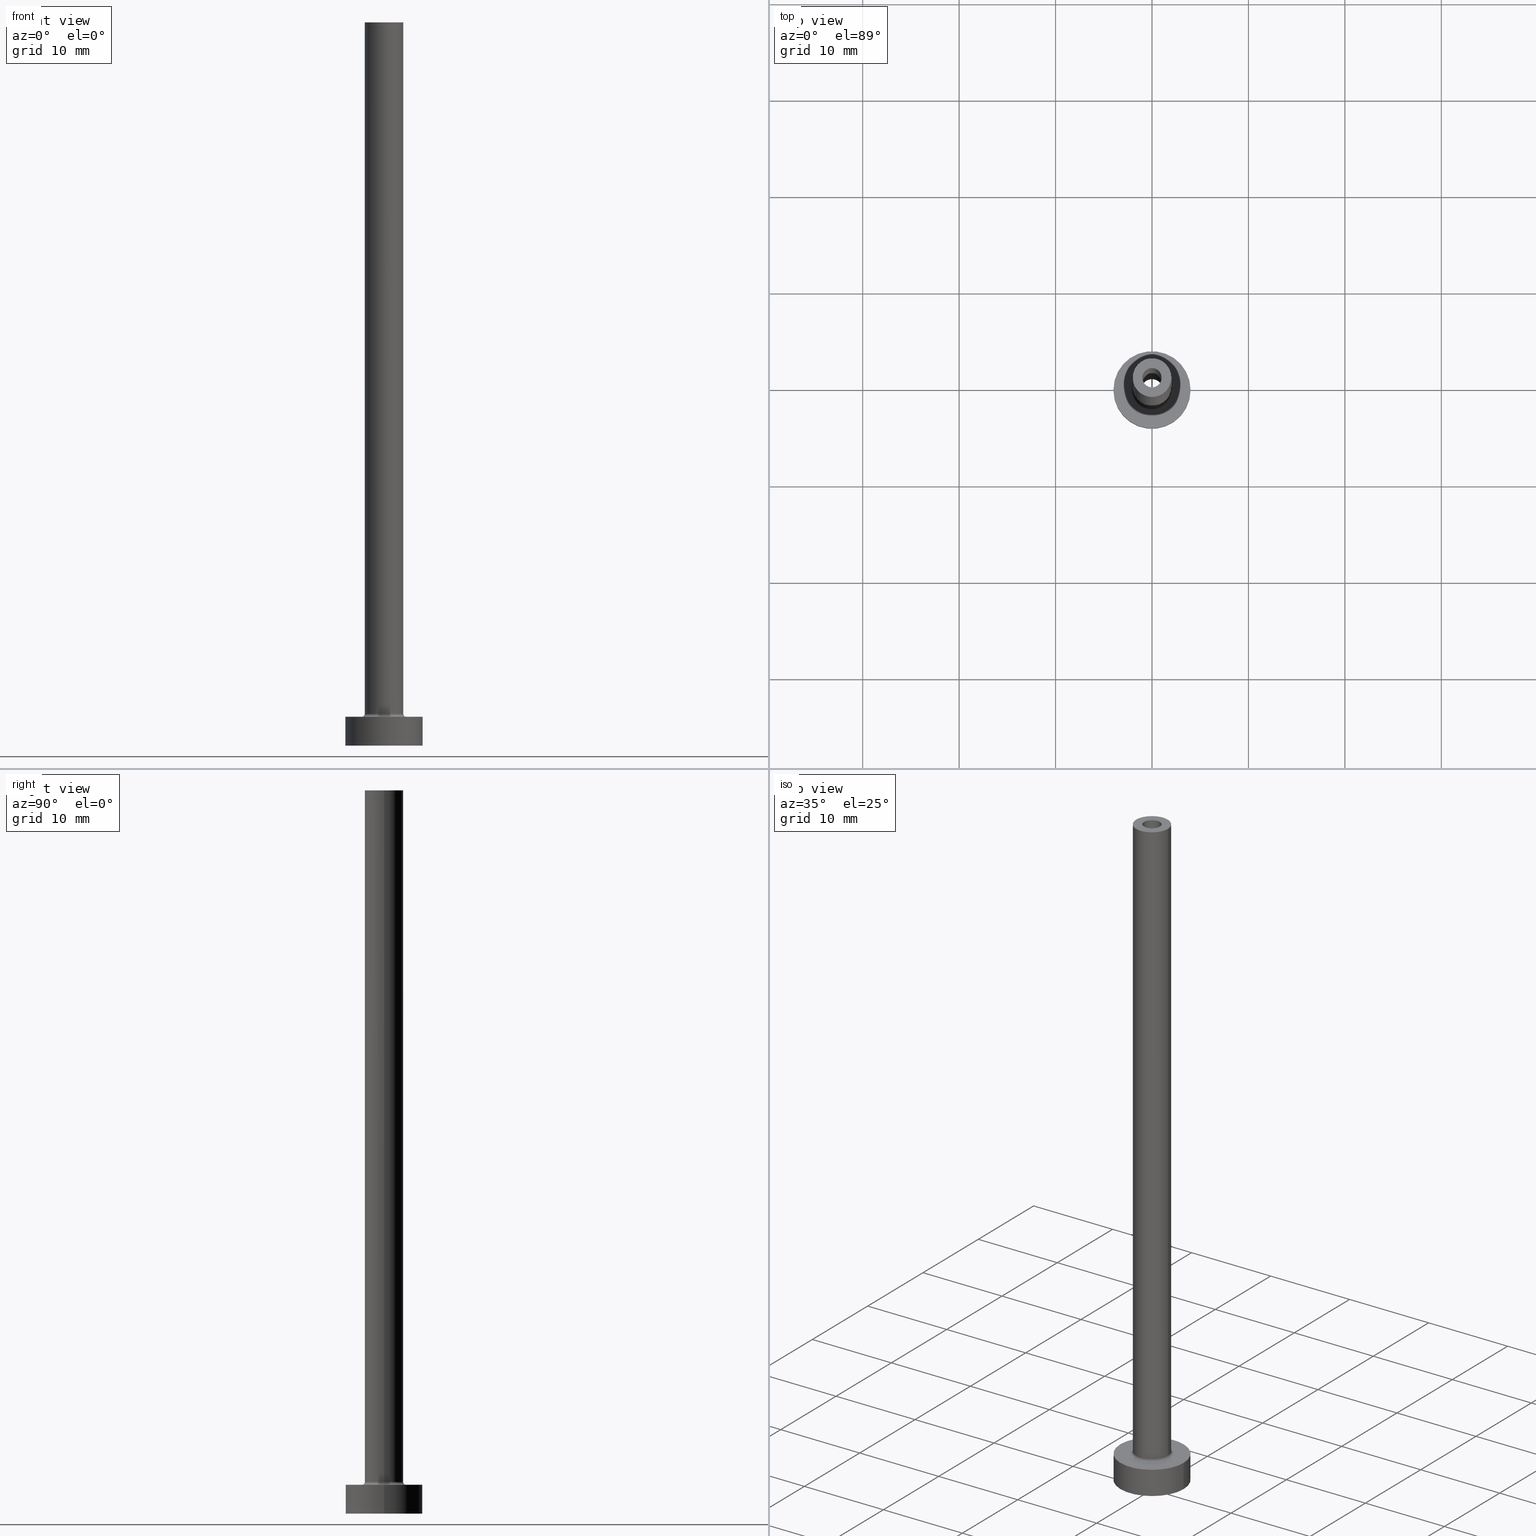
[diagram: canonical four-view strip — front | top / right | iso, engineering-drawing reading convention]
A machine part, canonical four-view strip (front | top / right | iso — engineering-drawing reading convention). The complete STEP part file that produces these views, byte-faithful:
ISO-10303-21;
HEADER;
FILE_DESCRIPTION (( 'STEP AP203' ),
    '1' );
FILE_NAME ('1f47.STEP',
    '2023-02-13T18:19:13',
    ( '' ),
    ( '' ),
    'SwSTEP 2.0',
    'SolidWorks 2019',
    '' );
FILE_SCHEMA (( 'CONFIG_CONTROL_DESIGN' ));
ENDSEC;

DATA;
#1 = CC_DESIGN_PERSON_AND_ORGANIZATION_ASSIGNMENT ( #449, #268, ( #460 ) ) ;
#2 = DIRECTION ( 'NONE',  ( -0.000000000000000000, -0.000000000000000000, -1.000000000000000000 ) ) ;
#3 = VERTEX_POINT ( 'NONE', #308 ) ;
#4 = PLANE ( 'NONE',  #385 ) ;
#5 = APPROVAL_PERSON_ORGANIZATION ( #375, #129, #310 ) ;
#6 = CARTESIAN_POINT ( 'NONE',  ( 4.000000000000000000, 4.898587196589412829E-16, 0.000000000000000000 ) ) ;
#7 = DIRECTION ( 'NONE',  ( 1.000000000000000000, 0.000000000000000000, 0.000000000000000000 ) ) ;
#8 = VERTEX_POINT ( 'NONE', #453 ) ;
#9 = DIRECTION ( 'NONE',  ( -0.000000000000000000, -0.000000000000000000, -1.000000000000000000 ) ) ;
#10 = ORIENTED_EDGE ( 'NONE', *, *, #213, .F. ) ;
#11 = FACE_BOUND ( 'NONE', #57, .T. ) ;
#12 = ORIENTED_EDGE ( 'NONE', *, *, #51, .F. ) ;
#13 = CIRCLE ( 'NONE', #444, 0.2999999999999999334 ) ;
#14 = CARTESIAN_POINT ( 'NONE',  ( 0.000000000000000000, 0.000000000000000000, 3.299999999999997158 ) ) ;
#15 = ORIENTED_EDGE ( 'NONE', *, *, #358, .T. ) ;
#16 = EDGE_LOOP ( 'NONE', ( #362, #439 ) ) ;
#17 = PERSON_AND_ORGANIZATION_ROLE ( 'classification_officer' ) ;
#18 = DIRECTION ( 'NONE',  ( -1.000000000000000000, 0.000000000000000000, 0.000000000000000000 ) ) ;
#19 = AXIS2_PLACEMENT_3D ( 'NONE', #77, #212, #183 ) ;
#20 = DATE_AND_TIME ( #25, #142 ) ;
#21 = DIRECTION ( 'NONE',  ( 1.000000000000000000, 0.000000000000000000, 0.000000000000000000 ) ) ;
#22 = CALENDAR_DATE ( 2023, 13, 2 ) ;
#23 = LINE ( 'NONE', #409, #427 ) ;
#24 = AXIS2_PLACEMENT_3D ( 'NONE', #269, #28, #99 ) ;
#25 = CALENDAR_DATE ( 2023, 13, 2 ) ;
#26 = DIRECTION ( 'NONE',  ( 0.000000000000000000, 0.000000000000000000, 1.000000000000000000 ) ) ;
#27 = AXIS2_PLACEMENT_3D ( 'NONE', #276, #408, #382 ) ;
#28 = DIRECTION ( 'NONE',  ( 0.000000000000000000, 0.000000000000000000, -1.000000000000000000 ) ) ;
#29 = EDGE_CURVE ( 'NONE', #159, #3, #23, .T. ) ;
#30 = DIRECTION ( 'NONE',  ( -1.000000000000000000, 0.000000000000000000, 0.000000000000000000 ) ) ;
#31 = ADVANCED_FACE ( 'NONE', ( #210 ), #412, .T. ) ;
#32 = FACE_BOUND ( 'NONE', #253, .T. ) ;
#33 = AXIS2_PLACEMENT_3D ( 'NONE', #376, #416, #18 ) ;
#34 = CIRCLE ( 'NONE', #204, 1.149999999999999911 ) ;
#35 = LOCAL_TIME ( 19, 19, 13.00000000000000000, #237 ) ;
#36 = CARTESIAN_POINT ( 'NONE',  ( 4.000000000000000000, 4.898587196589412829E-16, 3.000000000000000000 ) ) ;
#37 = ORIENTED_EDGE ( 'NONE', *, *, #143, .T. ) ;
#38 = DESIGN_CONTEXT ( 'detailed design', #174, 'design' ) ;
#39 = DIRECTION ( 'NONE',  ( 0.000000000000000000, 0.000000000000000000, 1.000000000000000000 ) ) ;
#40 = ORIENTED_EDGE ( 'NONE', *, *, #115, .T. ) ;
#41 = DIRECTION ( 'NONE',  ( -0.000000000000000000, -0.000000000000000000, -1.000000000000000000 ) ) ;
#42 = EDGE_LOOP ( 'NONE', ( #360, #431, #225, #84 ) ) ;
#43 = VECTOR ( 'NONE', #144, 1000.000000000000000 ) ;
#44 = DIRECTION ( 'NONE',  ( 0.000000000000000000, 0.000000000000000000, 1.000000000000000000 ) ) ;
#45 = APPROVAL ( #132, 'NEUR�EN�' ) ;
#46 = ORIENTED_EDGE ( 'NONE', *, *, #182, .F. ) ;
#47 = CARTESIAN_POINT ( 'NONE',  ( 0.000000000000000000, 0.000000000000000000, 75.00000000000000000 ) ) ;
#48 = ORIENTED_EDGE ( 'NONE', *, *, #289, .T. ) ;
#49 = DIRECTION ( 'NONE',  ( 0.000000000000000000, 0.000000000000000000, 1.000000000000000000 ) ) ;
#50 = ORIENTED_EDGE ( 'NONE', *, *, #229, .T. ) ;
#51 = EDGE_CURVE ( 'NONE', #326, #8, #265, .T. ) ;
#52 = FACE_OUTER_BOUND ( 'NONE', #185, .T. ) ;
#53 = CIRCLE ( 'NONE', #309, 1.000000000000000000 ) ;
#54 = ORIENTED_EDGE ( 'NONE', *, *, #358, .F. ) ;
#55 = LOCAL_TIME ( 19, 19, 13.00000000000000000, #451 ) ;
#56 = PERSON_AND_ORGANIZATION ( #244, #211 ) ;
#57 = EDGE_LOOP ( 'NONE', ( #397, #181 ) ) ;
#58 = APPLICATION_PROTOCOL_DEFINITION ( 'international standard', 'config_control_design', 1994, #174 ) ;
#59 = DIRECTION ( 'NONE',  ( 1.000000000000000000, 0.000000000000000000, 0.000000000000000000 ) ) ;
#60 = DATE_AND_TIME ( #22, #267 ) ;
#61 = CYLINDRICAL_SURFACE ( 'NONE', #300, 1.000000000000000000 ) ;
#62 = ADVANCED_FACE ( 'NONE', ( #207 ), #101, .F. ) ;
#63 = AXIS2_PLACEMENT_3D ( 'NONE', #425, #218, #314 ) ;
#64 = CC_DESIGN_APPROVAL ( #129, ( #168 ) ) ;
#65 = COORDINATED_UNIVERSAL_TIME_OFFSET ( 1, 0, .AHEAD. ) ;
#66 = CARTESIAN_POINT ( 'NONE',  ( -2.000000000000000000, 0.000000000000000000, 3.299999999999997158 ) ) ;
#67 = DATE_AND_TIME ( #342, #245 ) ;
#68 = DIRECTION ( 'NONE',  ( 0.000000000000000000, 0.000000000000000000, -1.000000000000000000 ) ) ;
#69 = CARTESIAN_POINT ( 'NONE',  ( -1.149999999999999911, 0.000000000000000000, 39.99999999999999289 ) ) ;
#70 = AXIS2_PLACEMENT_3D ( 'NONE', #110, #215, #461 ) ;
#71 = PLANE ( 'NONE',  #103 ) ;
#72 = CARTESIAN_POINT ( 'NONE',  ( 1.149999999999999911, 1.408343819019456028E-16, 43.25269119345810509 ) ) ;
#73 = EDGE_CURVE ( 'NONE', #159, #148, #330, .T. ) ;
#74 = CARTESIAN_POINT ( 'NONE',  ( -4.000000000000000000, 0.000000000000000000, 0.000000000000000000 ) ) ;
#75 = DIRECTION ( 'NONE',  ( 0.000000000000000000, 0.000000000000000000, 1.000000000000000000 ) ) ;
#76 = ORIENTED_EDGE ( 'NONE', *, *, #278, .T. ) ;
#77 = CARTESIAN_POINT ( 'NONE',  ( 0.000000000000000000, 0.000000000000000000, 3.299999999999997158 ) ) ;
#78 = ORIENTED_EDGE ( 'NONE', *, *, #79, .F. ) ;
#79 = EDGE_CURVE ( 'NONE', #231, #424, #441, .T. ) ;
#80 = DIRECTION ( 'NONE',  ( 0.000000000000000000, 0.000000000000000000, 1.000000000000000000 ) ) ;
#81 = VERTEX_POINT ( 'NONE', #374 ) ;
#82 = CIRCLE ( 'NONE', #186, 1.149999999999999911 ) ;
#83 = DIRECTION ( 'NONE',  ( 1.000000000000000000, 0.000000000000000000, 0.000000000000000000 ) ) ;
#84 = ORIENTED_EDGE ( 'NONE', *, *, #79, .T. ) ;
#85 = DIRECTION ( 'NONE',  ( 0.000000000000000000, 0.000000000000000000, 1.000000000000000000 ) ) ;
#86 = ORIENTED_EDGE ( 'NONE', *, *, #329, .F. ) ;
#87 = CC_DESIGN_PERSON_AND_ORGANIZATION_ASSIGNMENT ( #56, #206, ( #168 ) ) ;
#88 = CARTESIAN_POINT ( 'NONE',  ( 0.000000000000000000, 0.000000000000000000, 3.299999999999997158 ) ) ;
#89 = VERTEX_POINT ( 'NONE', #240 ) ;
#90 = AXIS2_PLACEMENT_3D ( 'NONE', #390, #351, #145 ) ;
#91 = ORIENTED_EDGE ( 'NONE', *, *, #255, .T. ) ;
#92 = PERSON_AND_ORGANIZATION ( #244, #211 ) ;
#93 = DIRECTION ( 'NONE',  ( 0.000000000000000000, 0.000000000000000000, -1.000000000000000000 ) ) ;
#94 = PERSON_AND_ORGANIZATION_ROLE ( 'design_owner' ) ;
#95 = ADVANCED_FACE ( 'NONE', ( #414 ), #61, .F. ) ;
#96 = DIRECTION ( 'NONE',  ( 1.000000000000000000, 0.000000000000000000, 0.000000000000000000 ) ) ;
#97 = DIRECTION ( 'NONE',  ( -0.000000000000000000, -0.000000000000000000, -1.000000000000000000 ) ) ;
#98 = CIRCLE ( 'NONE', #354, 0.2999999999999999334 ) ;
#99 = DIRECTION ( 'NONE',  ( -1.000000000000000000, 0.000000000000000000, 0.000000000000000000 ) ) ;
#100 = EDGE_CURVE ( 'NONE', #89, #369, #391, .T. ) ;
#101 = CYLINDRICAL_SURFACE ( 'NONE', #24, 1.000000000000000000 ) ;
#102 = CARTESIAN_POINT ( 'NONE',  ( 0.000000000000000000, 0.000000000000000000, 39.99999999999999289 ) ) ;
#103 = AXIS2_PLACEMENT_3D ( 'NONE', #313, #75, #279 ) ;
#104 = CARTESIAN_POINT ( 'NONE',  ( 0.000000000000000000, 0.000000000000000000, 75.00000000000000000 ) ) ;
#105 = CARTESIAN_POINT ( 'NONE',  ( 4.000000000000000000, 4.898587196589412829E-16, 3.000000000000000000 ) ) ;
#106 = CARTESIAN_POINT ( 'NONE',  ( 0.000000000000000000, 0.000000000000000000, 3.000000000000000000 ) ) ;
#107 = CIRCLE ( 'NONE', #363, 2.000000000000000000 ) ;
#108 = AXIS2_PLACEMENT_3D ( 'NONE', #102, #246, #423 ) ;
#109 = CC_DESIGN_APPROVAL ( #217, ( #378 ) ) ;
#110 = CARTESIAN_POINT ( 'NONE',  ( 0.000000000000000000, 0.000000000000000000, 3.000000000000000000 ) ) ;
#111 = ORIENTED_EDGE ( 'NONE', *, *, #440, .F. ) ;
#112 = ADVANCED_FACE ( 'NONE', ( #339 ), #306, .F. ) ;
#113 = DIRECTION ( 'NONE',  ( 0.000000000000000000, -1.000000000000000000, 0.000000000000000000 ) ) ;
#114 = ORIENTED_EDGE ( 'NONE', *, *, #29, .F. ) ;
#115 = EDGE_CURVE ( 'NONE', #254, #124, #241, .T. ) ;
#116 = ORIENTED_EDGE ( 'NONE', *, *, #456, .T. ) ;
#117 = AXIS2_PLACEMENT_3D ( 'NONE', #450, #133, #205 ) ;
#118 = CIRCLE ( 'NONE', #19, 2.000000000000000000 ) ;
#119 = DIRECTION ( 'NONE',  ( 0.000000000000000000, 0.000000000000000000, 1.000000000000000000 ) ) ;
#120 = EDGE_LOOP ( 'NONE', ( #299, #372, #154, #116 ) ) ;
#121 = CARTESIAN_POINT ( 'NONE',  ( 2.299999999999999822, 0.000000000000000000, 3.299999999999997158 ) ) ;
#122 = ORIENTED_EDGE ( 'NONE', *, *, #255, .F. ) ;
#123 = PRODUCT_DEFINITION_SHAPE ( 'NONE', 'NONE',  #168 ) ;
#124 = VERTEX_POINT ( 'NONE', #66 ) ;
#125 = AXIS2_PLACEMENT_3D ( 'NONE', #303, #26, #235 ) ;
#126 = MECHANICAL_CONTEXT ( 'NONE', #151, 'mechanical' ) ;
#127 = VECTOR ( 'NONE', #173, 1000.000000000000000 ) ;
#128 = DIRECTION ( 'NONE',  ( -1.000000000000000000, 0.000000000000000000, 0.000000000000000000 ) ) ;
#129 = APPROVAL ( #371, 'NEUR�EN�' ) ;
#130 = PERSON_AND_ORGANIZATION ( #244, #211 ) ;
#131 = DIRECTION ( 'NONE',  ( 0.000000000000000000, 0.000000000000000000, -1.000000000000000000 ) ) ;
#132 = APPROVAL_STATUS ( 'not_yet_approved' ) ;
#133 = DIRECTION ( 'NONE',  ( 0.000000000000000000, 0.000000000000000000, 1.000000000000000000 ) ) ;
#134 = CALENDAR_DATE ( 2023, 13, 2 ) ;
#135 = CARTESIAN_POINT ( 'NONE',  ( 1.000000000000000000, 1.224646799147353207E-16, 75.00000000000000000 ) ) ;
#136 = CC_DESIGN_SECURITY_CLASSIFICATION ( #378, ( #460 ) ) ;
#137 = APPROVAL_DATE_TIME ( #67, #45 ) ;
#138 = DIRECTION ( 'NONE',  ( -1.000000000000000000, 0.000000000000000000, 0.000000000000000000 ) ) ;
#139 = FACE_OUTER_BOUND ( 'NONE', #400, .T. ) ;
#140 = CARTESIAN_POINT ( 'NONE',  ( 1.149999999999999911, 1.408343819019456028E-16, 0.000000000000000000 ) ) ;
#141 = AXIS2_PLACEMENT_3D ( 'NONE', #196, #80, #290 ) ;
#142 = LOCAL_TIME ( 19, 19, 13.00000000000000000, #337 ) ;
#143 = EDGE_CURVE ( 'NONE', #316, #254, #107, .T. ) ;
#144 = DIRECTION ( 'NONE',  ( -0.000000000000000000, -0.000000000000000000, -1.000000000000000000 ) ) ;
#145 = DIRECTION ( 'NONE',  ( 1.000000000000000000, 0.000000000000000000, 0.000000000000000000 ) ) ;
#146 = ORIENTED_EDGE ( 'NONE', *, *, #456, .F. ) ;
#147 = DIRECTION ( 'NONE',  ( 0.000000000000000000, 0.000000000000000000, 1.000000000000000000 ) ) ;
#148 = VERTEX_POINT ( 'NONE', #135 ) ;
#149 = AXIS2_PLACEMENT_3D ( 'NONE', #47, #189, #83 ) ;
#150 = CARTESIAN_POINT ( 'NONE',  ( 0.000000000000000000, 0.000000000000000000, 39.99999999999999289 ) ) ;
#151 = APPLICATION_CONTEXT ( 'configuration controlled 3d designs of mechanical parts and assemblies' ) ;
#152 = EDGE_LOOP ( 'NONE', ( #15, #37 ) ) ;
#153 = PLANE ( 'NONE',  #341 ) ;
#154 = ORIENTED_EDGE ( 'NONE', *, *, #194, .T. ) ;
#155 = DIRECTION ( 'NONE',  ( 1.224646799147353207E-16, 1.000000000000000000, -0.000000000000000000 ) ) ;
#156 = VERTEX_POINT ( 'NONE', #69 ) ;
#157 = VECTOR ( 'NONE', #396, 1000.000000000000000 ) ;
#158 = FACE_OUTER_BOUND ( 'NONE', #152, .T. ) ;
#159 = VERTEX_POINT ( 'NONE', #275 ) ;
#160 = CARTESIAN_POINT ( 'NONE',  ( 0.000000000000000000, 0.000000000000000000, 75.00000000000000000 ) ) ;
#161 = ORIENTED_EDGE ( 'NONE', *, *, #29, .T. ) ;
#162 = ORIENTED_EDGE ( 'NONE', *, *, #289, .F. ) ;
#163 = ADVANCED_FACE ( 'NONE', ( #347 ), #171, .T. ) ;
#164 = CARTESIAN_POINT ( 'NONE',  ( 0.000000000000000000, 0.000000000000000000, 43.25269119345810509 ) ) ;
#165 = APPROVAL_PERSON_ORGANIZATION ( #92, #45, #234 ) ;
#166 = APPROVAL_ROLE ( '' ) ;
#167 = CARTESIAN_POINT ( 'NONE',  ( 0.000000000000000000, 0.000000000000000000, 75.00000000000000000 ) ) ;
#168 = PRODUCT_DEFINITION ( 'NEZN�M�', '', #460, #38 ) ;
#169 = APPROVAL_STATUS ( 'not_yet_approved' ) ;
#170 = DIRECTION ( 'NONE',  ( 0.000000000000000000, 0.000000000000000000, 1.000000000000000000 ) ) ;
#171 = CYLINDRICAL_SURFACE ( 'NONE', #377, 2.000000000000000000 ) ;
#172 = TOROIDAL_SURFACE ( 'NONE', #258, 2.299999999999999822, 0.2999999999999999889 ) ;
#173 = DIRECTION ( 'NONE',  ( 0.000000000000000000, 0.000000000000000000, -1.000000000000000000 ) ) ;
#174 = APPLICATION_CONTEXT ( 'configuration controlled 3d designs of mechanical parts and assemblies' ) ;
#175 = LINE ( 'NONE', #36, #43 ) ;
#176 = ADVANCED_FACE ( 'NONE', ( #349 ), #202, .F. ) ;
#177 = CARTESIAN_POINT ( 'NONE',  ( 2.000000000000000000, 2.449293598294706414E-16, 3.299999999999997158 ) ) ;
#178 = VECTOR ( 'NONE', #2, 1000.000000000000000 ) ;
#179 = APPROVAL_PERSON_ORGANIZATION ( #307, #217, #166 ) ;
#180 = FACE_OUTER_BOUND ( 'NONE', #328, .T. ) ;
#181 = ORIENTED_EDGE ( 'NONE', *, *, #322, .T. ) ;
#182 = EDGE_CURVE ( 'NONE', #148, #283, #233, .T. ) ;
#183 = DIRECTION ( 'NONE',  ( 1.000000000000000000, 0.000000000000000000, 0.000000000000000000 ) ) ;
#184 = DIRECTION ( 'NONE',  ( 1.000000000000000000, 0.000000000000000000, 0.000000000000000000 ) ) ;
#185 = EDGE_LOOP ( 'NONE', ( #394, #86 ) ) ;
#186 = AXIS2_PLACEMENT_3D ( 'NONE', #366, #49, #184 ) ;
#187 = APPLICATION_PROTOCOL_DEFINITION ( 'international standard', 'config_control_design', 1994, #151 ) ;
#188 = ORIENTED_EDGE ( 'NONE', *, *, #73, .T. ) ;
#189 = DIRECTION ( 'NONE',  ( 0.000000000000000000, 0.000000000000000000, 1.000000000000000000 ) ) ;
#190 = ORIENTED_EDGE ( 'NONE', *, *, #322, .F. ) ;
#191 = CARTESIAN_POINT ( 'NONE',  ( 0.000000000000000000, 0.000000000000000000, 0.000000000000000000 ) ) ;
#192 = ORIENTED_EDGE ( 'NONE', *, *, #213, .T. ) ;
#193 = PRODUCT ( '1f47', '1f47', '', ( #126 ) ) ;
#194 = EDGE_CURVE ( 'NONE', #156, #430, #271, .T. ) ;
#195 =( GEOMETRIC_REPRESENTATION_CONTEXT ( 3 ) GLOBAL_UNCERTAINTY_ASSIGNED_CONTEXT ( ( #436 ) ) GLOBAL_UNIT_ASSIGNED_CONTEXT ( ( #298, #264, #230 ) ) REPRESENTATION_CONTEXT ( 'NONE', 'WORKASPACE' ) );
#196 = CARTESIAN_POINT ( 'NONE',  ( 0.000000000000000000, 0.000000000000000000, 3.000000000000000000 ) ) ;
#197 = ORIENTED_EDGE ( 'NONE', *, *, #399, .F. ) ;
#198 = SHAPE_DEFINITION_REPRESENTATION ( #123, #389 ) ;
#199 = ADVANCED_FACE ( 'NONE', ( #180 ), #401, .F. ) ;
#200 = VERTEX_POINT ( 'NONE', #177 ) ;
#201 = DATE_AND_TIME ( #232, #35 ) ;
#202 = CYLINDRICAL_SURFACE ( 'NONE', #243, 1.149999999999999911 ) ;
#203 = DATE_TIME_ROLE ( 'creation_date' ) ;
#204 = AXIS2_PLACEMENT_3D ( 'NONE', #191, #9, #334 ) ;
#205 = DIRECTION ( 'NONE',  ( 1.000000000000000000, 0.000000000000000000, 0.000000000000000000 ) ) ;
#206 = PERSON_AND_ORGANIZATION_ROLE ( 'creator' ) ;
#207 = FACE_OUTER_BOUND ( 'NONE', #323, .T. ) ;
#208 = SECURITY_CLASSIFICATION_LEVEL ( 'unclassified' ) ;
#209 = CARTESIAN_POINT ( 'NONE',  ( 0.000000000000000000, 0.000000000000000000, 75.00000000000000000 ) ) ;
#210 = FACE_OUTER_BOUND ( 'NONE', #257, .T. ) ;
#211 = ORGANIZATION ( 'NEUR�EN�', 'NEUR�EN�', '' ) ;
#212 = DIRECTION ( 'NONE',  ( 0.000000000000000000, 0.000000000000000000, 1.000000000000000000 ) ) ;
#213 = EDGE_CURVE ( 'NONE', #369, #89, #251, .T. ) ;
#214 = DIRECTION ( 'NONE',  ( -0.000000000000000000, -0.000000000000000000, -1.000000000000000000 ) ) ;
#215 = DIRECTION ( 'NONE',  ( -0.000000000000000000, -0.000000000000000000, -1.000000000000000000 ) ) ;
#216 = CIRCLE ( 'NONE', #459, 1.000000000000000000 ) ;
#217 = APPROVAL ( #169, 'NEUR�EN�' ) ;
#218 = DIRECTION ( 'NONE',  ( -0.000000000000000000, -0.000000000000000000, -1.000000000000000000 ) ) ;
#219 = ORIENTED_EDGE ( 'NONE', *, *, #381, .T. ) ;
#220 = DIRECTION ( 'NONE',  ( 0.000000000000000000, 0.000000000000000000, 1.000000000000000000 ) ) ;
#221 = AXIS2_PLACEMENT_3D ( 'NONE', #343, #97, #21 ) ;
#222 = EDGE_LOOP ( 'NONE', ( #336, #48, #405, #367 ) ) ;
#223 = DIRECTION ( 'NONE',  ( 1.000000000000000000, 0.000000000000000000, -0.000000000000000000 ) ) ;
#224 = CC_DESIGN_PERSON_AND_ORGANIZATION_ASSIGNMENT ( #130, #94, ( #193 ) ) ;
#225 = ORIENTED_EDGE ( 'NONE', *, *, #392, .T. ) ;
#226 = PLANE ( 'NONE',  #324 ) ;
#227 = ORIENTED_EDGE ( 'NONE', *, *, #392, .F. ) ;
#228 = EDGE_LOOP ( 'NONE', ( #12, #76, #91, #227 ) ) ;
#229 = EDGE_CURVE ( 'NONE', #81, #332, #285, .T. ) ;
#230 =( NAMED_UNIT ( * ) SI_UNIT ( $, .STERADIAN. ) SOLID_ANGLE_UNIT ( ) );
#231 = VERTEX_POINT ( 'NONE', #74 ) ;
#232 = CALENDAR_DATE ( 2023, 13, 2 ) ;
#233 = LINE ( 'NONE', #447, #333 ) ;
#234 = APPROVAL_ROLE ( '' ) ;
#235 = DIRECTION ( 'NONE',  ( 1.000000000000000000, 0.000000000000000000, 0.000000000000000000 ) ) ;
#236 = EDGE_CURVE ( 'NONE', #200, #124, #118, .T. ) ;
#237 = COORDINATED_UNIVERSAL_TIME_OFFSET ( 1, 0, .AHEAD. ) ;
#238 = CIRCLE ( 'NONE', #420, 1.149999999999999911 ) ;
#239 = DIRECTION ( 'NONE',  ( -1.000000000000000000, 0.000000000000000000, 0.000000000000000000 ) ) ;
#240 = CARTESIAN_POINT ( 'NONE',  ( -2.299999999999999822, 2.816687638038912056E-16, 2.999999999999998668 ) ) ;
#241 = LINE ( 'NONE', #380, #452 ) ;
#242 = LINE ( 'NONE', #284, #178 ) ;
#243 = AXIS2_PLACEMENT_3D ( 'NONE', #164, #443, #128 ) ;
#244 = PERSON ( 'NEUR�EN�', 'NEUR�EN�', 'NEUR�EN�', ('NEUR�EN�'), ('NEUR�EN�'), ('NEUR�EN�') ) ;
#245 = LOCAL_TIME ( 19, 19, 13.00000000000000000, #344 ) ;
#246 = DIRECTION ( 'NONE',  ( 0.000000000000000000, 0.000000000000000000, 1.000000000000000000 ) ) ;
#247 = ORIENTED_EDGE ( 'NONE', *, *, #445, .T. ) ;
#248 = FACE_OUTER_BOUND ( 'NONE', #434, .T. ) ;
#249 = DIRECTION ( 'NONE',  ( 1.000000000000000000, 0.000000000000000000, -0.000000000000000000 ) ) ;
#250 = AXIS2_PLACEMENT_3D ( 'NONE', #387, #312, #455 ) ;
#251 = CIRCLE ( 'NONE', #63, 2.299999999999999822 ) ;
#252 = CARTESIAN_POINT ( 'NONE',  ( 1.000000000000000000, 1.224646799147353207E-16, 39.99999999999999289 ) ) ;
#253 = EDGE_LOOP ( 'NONE', ( #192, #357 ) ) ;
#254 = VERTEX_POINT ( 'NONE', #319 ) ;
#255 = EDGE_CURVE ( 'NONE', #424, #231, #282, .T. ) ;
#256 = CARTESIAN_POINT ( 'NONE',  ( 0.000000000000000000, 0.000000000000000000, 0.000000000000000000 ) ) ;
#257 = EDGE_LOOP ( 'NONE', ( #162, #54, #40, #429 ) ) ;
#258 = AXIS2_PLACEMENT_3D ( 'NONE', #88, #44, #7 ) ;
#259 = CARTESIAN_POINT ( 'NONE',  ( 2.299999999999999822, 0.000000000000000000, 2.999999999999998668 ) ) ;
#260 = ORIENTED_EDGE ( 'NONE', *, *, #296, .T. ) ;
#261 = FACE_OUTER_BOUND ( 'NONE', #318, .T. ) ;
#262 = ORIENTED_EDGE ( 'NONE', *, *, #445, .F. ) ;
#263 = ADVANCED_FACE ( 'NONE', ( #32, #248 ), #4, .T. ) ;
#264 =( NAMED_UNIT ( * ) PLANE_ANGLE_UNIT ( ) SI_UNIT ( $, .RADIAN. ) );
#265 = CIRCLE ( 'NONE', #338, 4.000000000000000000 ) ;
#266 = ORIENTED_EDGE ( 'NONE', *, *, #426, .F. ) ;
#267 = LOCAL_TIME ( 19, 19, 13.00000000000000000, #65 ) ;
#268 = PERSON_AND_ORGANIZATION_ROLE ( 'design_supplier' ) ;
#269 = CARTESIAN_POINT ( 'NONE',  ( 0.000000000000000000, 0.000000000000000000, 75.00000000000000000 ) ) ;
#270 = ADVANCED_FACE ( 'NONE', ( #350 ), #353, .T. ) ;
#271 = LINE ( 'NONE', #411, #127 ) ;
#272 = ADVANCED_FACE ( 'NONE', ( #386 ), #317, .T. ) ;
#273 = DIRECTION ( 'NONE',  ( 0.000000000000000000, 0.000000000000000000, -1.000000000000000000 ) ) ;
#274 = CIRCLE ( 'NONE', #428, 1.149999999999999911 ) ;
#275 = CARTESIAN_POINT ( 'NONE',  ( -1.000000000000000000, 0.000000000000000000, 75.00000000000000000 ) ) ;
#276 = CARTESIAN_POINT ( 'NONE',  ( 0.000000000000000000, 0.000000000000000000, 0.000000000000000000 ) ) ;
#277 = DIRECTION ( 'NONE',  ( -0.000000000000000000, -0.000000000000000000, -1.000000000000000000 ) ) ;
#278 = EDGE_CURVE ( 'NONE', #326, #424, #175, .T. ) ;
#279 = DIRECTION ( 'NONE',  ( 1.000000000000000000, 0.000000000000000000, -0.000000000000000000 ) ) ;
#280 = AXIS2_PLACEMENT_3D ( 'NONE', #384, #68, #239 ) ;
#281 = FACE_BOUND ( 'NONE', #16, .T. ) ;
#282 = CIRCLE ( 'NONE', #250, 4.000000000000000000 ) ;
#283 = VERTEX_POINT ( 'NONE', #252 ) ;
#284 = CARTESIAN_POINT ( 'NONE',  ( 2.000000000000000000, 2.449293598294706414E-16, 75.00000000000000000 ) ) ;
#285 = LINE ( 'NONE', #72, #157 ) ;
#286 = ORIENTED_EDGE ( 'NONE', *, *, #182, .T. ) ;
#287 = AXIS2_PLACEMENT_3D ( 'NONE', #106, #214, #30 ) ;
#288 = DIRECTION ( 'NONE',  ( 1.000000000000000000, 0.000000000000000000, 0.000000000000000000 ) ) ;
#289 = EDGE_CURVE ( 'NONE', #316, #200, #242, .T. ) ;
#290 = DIRECTION ( 'NONE',  ( 1.000000000000000000, 0.000000000000000000, 0.000000000000000000 ) ) ;
#291 = ORIENTED_EDGE ( 'NONE', *, *, #395, .T. ) ;
#292 = CARTESIAN_POINT ( 'NONE',  ( 0.000000000000000000, 0.000000000000000000, 39.99999999999999289 ) ) ;
#293 = ORIENTED_EDGE ( 'NONE', *, *, #407, .T. ) ;
#294 = CIRCLE ( 'NONE', #149, 2.000000000000000000 ) ;
#295 = CARTESIAN_POINT ( 'NONE',  ( -4.000000000000000000, 0.000000000000000000, 3.000000000000000000 ) ) ;
#296 = EDGE_CURVE ( 'NONE', #148, #159, #53, .T. ) ;
#297 = ORIENTED_EDGE ( 'NONE', *, *, #236, .F. ) ;
#298 =( LENGTH_UNIT ( ) NAMED_UNIT ( * ) SI_UNIT ( .MILLI., .METRE. ) );
#299 = ORIENTED_EDGE ( 'NONE', *, *, #229, .F. ) ;
#300 = AXIS2_PLACEMENT_3D ( 'NONE', #167, #273, #138 ) ;
#301 = DIRECTION ( 'NONE',  ( -1.000000000000000000, 0.000000000000000000, 0.000000000000000000 ) ) ;
#302 = DATE_TIME_ROLE ( 'classification_date' ) ;
#303 = CARTESIAN_POINT ( 'NONE',  ( 0.000000000000000000, 0.000000000000000000, 75.00000000000000000 ) ) ;
#304 = ADVANCED_FACE ( 'NONE', ( #393, #139 ), #71, .F. ) ;
#305 = DATE_AND_TIME ( #134, #55 ) ;
#306 = CYLINDRICAL_SURFACE ( 'NONE', #280, 1.149999999999999911 ) ;
#307 = PERSON_AND_ORGANIZATION ( #244, #211 ) ;
#308 = CARTESIAN_POINT ( 'NONE',  ( -1.000000000000000000, 0.000000000000000000, 39.99999999999999289 ) ) ;
#309 = AXIS2_PLACEMENT_3D ( 'NONE', #104, #220, #359 ) ;
#310 = APPROVAL_ROLE ( '' ) ;
#311 = DIRECTION ( 'NONE',  ( 0.000000000000000000, 0.000000000000000000, 1.000000000000000000 ) ) ;
#312 = DIRECTION ( 'NONE',  ( 0.000000000000000000, 0.000000000000000000, 1.000000000000000000 ) ) ;
#313 = CARTESIAN_POINT ( 'NONE',  ( 0.000000000000000000, 0.000000000000000000, 0.000000000000000000 ) ) ;
#314 = DIRECTION ( 'NONE',  ( 1.000000000000000000, 0.000000000000000000, 0.000000000000000000 ) ) ;
#315 = CIRCLE ( 'NONE', #406, 2.000000000000000000 ) ;
#316 = VERTEX_POINT ( 'NONE', #417 ) ;
#317 = CYLINDRICAL_SURFACE ( 'NONE', #287, 4.000000000000000000 ) ;
#318 = EDGE_LOOP ( 'NONE', ( #355, #297, #247, #458 ) ) ;
#319 = CARTESIAN_POINT ( 'NONE',  ( -2.000000000000000000, 0.000000000000000000, 75.00000000000000000 ) ) ;
#320 = ORIENTED_EDGE ( 'NONE', *, *, #399, .T. ) ;
#321 = DIRECTION ( 'NONE',  ( 0.000000000000000000, 0.000000000000000000, 1.000000000000000000 ) ) ;
#322 = EDGE_CURVE ( 'NONE', #283, #3, #435, .T. ) ;
#323 = EDGE_LOOP ( 'NONE', ( #46, #260, #161, #190 ) ) ;
#324 = AXIS2_PLACEMENT_3D ( 'NONE', #160, #119, #223 ) ;
#325 = DIRECTION ( 'NONE',  ( 1.000000000000000000, 0.000000000000000000, 0.000000000000000000 ) ) ;
#326 = VERTEX_POINT ( 'NONE', #105 ) ;
#327 = LINE ( 'NONE', #295, #370 ) ;
#328 = EDGE_LOOP ( 'NONE', ( #111, #293, #10, #262 ) ) ;
#329 = EDGE_CURVE ( 'NONE', #81, #156, #238, .T. ) ;
#330 = CIRCLE ( 'NONE', #125, 1.000000000000000000 ) ;
#331 = DIRECTION ( 'NONE',  ( -1.000000000000000000, 1.224646799147353207E-16, 0.000000000000000000 ) ) ;
#332 = VERTEX_POINT ( 'NONE', #140 ) ;
#333 = VECTOR ( 'NONE', #131, 1000.000000000000000 ) ;
#334 = DIRECTION ( 'NONE',  ( 1.000000000000000000, 0.000000000000000000, 0.000000000000000000 ) ) ;
#335 = EDGE_LOOP ( 'NONE', ( #219, #50, #320, #438 ) ) ;
#336 = ORIENTED_EDGE ( 'NONE', *, *, #143, .F. ) ;
#337 = COORDINATED_UNIVERSAL_TIME_OFFSET ( 1, 0, .AHEAD. ) ;
#338 = AXIS2_PLACEMENT_3D ( 'NONE', #383, #311, #96 ) ;
#339 = FACE_OUTER_BOUND ( 'NONE', #120, .T. ) ;
#340 = CC_DESIGN_PERSON_AND_ORGANIZATION_ASSIGNMENT ( #442, #446, ( #460 ) ) ;
#341 = AXIS2_PLACEMENT_3D ( 'NONE', #150, #85, #402 ) ;
#342 = CALENDAR_DATE ( 2023, 13, 2 ) ;
#343 = CARTESIAN_POINT ( 'NONE',  ( 0.000000000000000000, 0.000000000000000000, 3.000000000000000000 ) ) ;
#344 = COORDINATED_UNIVERSAL_TIME_OFFSET ( 1, 0, .AHEAD. ) ;
#345 = DIRECTION ( 'NONE',  ( -0.000000000000000000, -0.000000000000000000, -1.000000000000000000 ) ) ;
#346 = ADVANCED_FACE ( 'NONE', ( #281, #158 ), #226, .T. ) ;
#347 = FACE_OUTER_BOUND ( 'NONE', #222, .T. ) ;
#348 = CC_DESIGN_APPROVAL ( #45, ( #460 ) ) ;
#349 = FACE_OUTER_BOUND ( 'NONE', #335, .T. ) ;
#350 = FACE_OUTER_BOUND ( 'NONE', #228, .T. ) ;
#351 = DIRECTION ( 'NONE',  ( 0.000000000000000000, 0.000000000000000000, 1.000000000000000000 ) ) ;
#352 = PRODUCT_RELATED_PRODUCT_CATEGORY ( 'detail', '', ( #193 ) ) ;
#353 = CYLINDRICAL_SURFACE ( 'NONE', #70, 4.000000000000000000 ) ;
#354 = AXIS2_PLACEMENT_3D ( 'NONE', #364, #155, #331 ) ;
#355 = ORIENTED_EDGE ( 'NONE', *, *, #407, .F. ) ;
#356 = CARTESIAN_POINT ( 'NONE',  ( 0.000000000000000000, 0.000000000000000000, 39.99999999999999289 ) ) ;
#357 = ORIENTED_EDGE ( 'NONE', *, *, #100, .T. ) ;
#358 = EDGE_CURVE ( 'NONE', #254, #316, #294, .T. ) ;
#359 = DIRECTION ( 'NONE',  ( 1.000000000000000000, 0.000000000000000000, 0.000000000000000000 ) ) ;
#360 = ORIENTED_EDGE ( 'NONE', *, *, #278, .F. ) ;
#361 = DIRECTION ( 'NONE',  ( 0.000000000000000000, 0.000000000000000000, 1.000000000000000000 ) ) ;
#362 = ORIENTED_EDGE ( 'NONE', *, *, #73, .F. ) ;
#363 = AXIS2_PLACEMENT_3D ( 'NONE', #209, #170, #59 ) ;
#364 = CARTESIAN_POINT ( 'NONE',  ( -2.299999999999999822, 2.816687638038912056E-16, 3.299999999999997158 ) ) ;
#365 = EDGE_LOOP ( 'NONE', ( #188, #286, #266, #114 ) ) ;
#366 = CARTESIAN_POINT ( 'NONE',  ( 0.000000000000000000, 0.000000000000000000, 39.99999999999999289 ) ) ;
#367 = ORIENTED_EDGE ( 'NONE', *, *, #115, .F. ) ;
#368 = DIRECTION ( 'NONE',  ( 0.000000000000000000, 0.000000000000000000, -1.000000000000000000 ) ) ;
#369 = VERTEX_POINT ( 'NONE', #259 ) ;
#370 = VECTOR ( 'NONE', #437, 1000.000000000000000 ) ;
#371 = APPROVAL_STATUS ( 'not_yet_approved' ) ;
#372 = ORIENTED_EDGE ( 'NONE', *, *, #329, .T. ) ;
#373 = ADVANCED_FACE ( 'NONE', ( #11, #52 ), #153, .F. ) ;
#374 = CARTESIAN_POINT ( 'NONE',  ( 1.149999999999999911, 1.408343819019456028E-16, 39.99999999999999289 ) ) ;
#375 = PERSON_AND_ORGANIZATION ( #244, #211 ) ;
#376 = CARTESIAN_POINT ( 'NONE',  ( 0.000000000000000000, 0.000000000000000000, 75.00000000000000000 ) ) ;
#377 = AXIS2_PLACEMENT_3D ( 'NONE', #454, #277, #301 ) ;
#378 = SECURITY_CLASSIFICATION ( '', '', #208 ) ;
#379 = PERSON_AND_ORGANIZATION ( #244, #211 ) ;
#380 = CARTESIAN_POINT ( 'NONE',  ( -2.000000000000000000, 0.000000000000000000, 75.00000000000000000 ) ) ;
#381 = EDGE_CURVE ( 'NONE', #156, #81, #82, .T. ) ;
#382 = DIRECTION ( 'NONE',  ( 1.000000000000000000, 0.000000000000000000, 0.000000000000000000 ) ) ;
#383 = CARTESIAN_POINT ( 'NONE',  ( 0.000000000000000000, 0.000000000000000000, 3.000000000000000000 ) ) ;
#384 = CARTESIAN_POINT ( 'NONE',  ( 0.000000000000000000, 0.000000000000000000, 43.25269119345810509 ) ) ;
#385 = AXIS2_PLACEMENT_3D ( 'NONE', #421, #147, #249 ) ;
#386 = FACE_OUTER_BOUND ( 'NONE', #42, .T. ) ;
#387 = CARTESIAN_POINT ( 'NONE',  ( 0.000000000000000000, 0.000000000000000000, 0.000000000000000000 ) ) ;
#388 = CC_DESIGN_PERSON_AND_ORGANIZATION_ASSIGNMENT ( #379, #17, ( #378 ) ) ;
#389 = ADVANCED_BREP_SHAPE_REPRESENTATION ( '1f47', ( #422, #27 ), #195 ) ;
#390 = CARTESIAN_POINT ( 'NONE',  ( 0.000000000000000000, 0.000000000000000000, 3.299999999999997158 ) ) ;
#391 = CIRCLE ( 'NONE', #221, 2.299999999999999822 ) ;
#392 = EDGE_CURVE ( 'NONE', #8, #231, #327, .T. ) ;
#393 = FACE_BOUND ( 'NONE', #404, .T. ) ;
#394 = ORIENTED_EDGE ( 'NONE', *, *, #381, .F. ) ;
#395 = EDGE_CURVE ( 'NONE', #8, #326, #413, .T. ) ;
#396 = DIRECTION ( 'NONE',  ( 0.000000000000000000, 0.000000000000000000, -1.000000000000000000 ) ) ;
#397 = ORIENTED_EDGE ( 'NONE', *, *, #426, .T. ) ;
#398 = CARTESIAN_POINT ( 'NONE',  ( -1.149999999999999911, 0.000000000000000000, 0.000000000000000000 ) ) ;
#399 = EDGE_CURVE ( 'NONE', #332, #430, #34, .T. ) ;
#400 = EDGE_LOOP ( 'NONE', ( #78, #122 ) ) ;
#401 = TOROIDAL_SURFACE ( 'NONE', #90, 2.299999999999999822, 0.2999999999999999889 ) ;
#402 = DIRECTION ( 'NONE',  ( 1.000000000000000000, 0.000000000000000000, -0.000000000000000000 ) ) ;
#403 = ORIENTED_EDGE ( 'NONE', *, *, #51, .T. ) ;
#404 = EDGE_LOOP ( 'NONE', ( #146, #197 ) ) ;
#405 = ORIENTED_EDGE ( 'NONE', *, *, #236, .T. ) ;
#406 = AXIS2_PLACEMENT_3D ( 'NONE', #14, #321, #325 ) ;
#407 = EDGE_CURVE ( 'NONE', #124, #89, #98, .T. ) ;
#408 = DIRECTION ( 'NONE',  ( 0.000000000000000000, 0.000000000000000000, 1.000000000000000000 ) ) ;
#409 = CARTESIAN_POINT ( 'NONE',  ( -1.000000000000000000, 0.000000000000000000, 75.00000000000000000 ) ) ;
#410 = APPROVAL_DATE_TIME ( #60, #129 ) ;
#411 = CARTESIAN_POINT ( 'NONE',  ( -1.149999999999999911, 0.000000000000000000, 43.25269119345810509 ) ) ;
#412 = CYLINDRICAL_SURFACE ( 'NONE', #33, 2.000000000000000000 ) ;
#413 = CIRCLE ( 'NONE', #141, 4.000000000000000000 ) ;
#414 = FACE_OUTER_BOUND ( 'NONE', #365, .T. ) ;
#415 = APPROVAL_DATE_TIME ( #305, #217 ) ;
#416 = DIRECTION ( 'NONE',  ( -0.000000000000000000, -0.000000000000000000, -1.000000000000000000 ) ) ;
#417 = CARTESIAN_POINT ( 'NONE',  ( 2.000000000000000000, 2.449293598294706414E-16, 75.00000000000000000 ) ) ;
#418 = CLOSED_SHELL ( 'NONE', ( #95, #176, #199, #163, #270, #272, #263, #304, #31, #346, #448, #112, #373, #62 ) ) ;
#419 = CC_DESIGN_DATE_AND_TIME_ASSIGNMENT ( #201, #203, ( #168 ) ) ;
#420 = AXIS2_PLACEMENT_3D ( 'NONE', #356, #39, #457 ) ;
#421 = CARTESIAN_POINT ( 'NONE',  ( 0.000000000000000000, 0.000000000000000000, 3.000000000000000000 ) ) ;
#422 = MANIFOLD_SOLID_BREP ( 'Odebrat vysunut�m4', #418 ) ;
#423 = DIRECTION ( 'NONE',  ( 1.000000000000000000, 0.000000000000000000, 0.000000000000000000 ) ) ;
#424 = VERTEX_POINT ( 'NONE', #6 ) ;
#425 = CARTESIAN_POINT ( 'NONE',  ( 0.000000000000000000, 0.000000000000000000, 3.000000000000000000 ) ) ;
#426 = EDGE_CURVE ( 'NONE', #3, #283, #216, .T. ) ;
#427 = VECTOR ( 'NONE', #93, 1000.000000000000000 ) ;
#428 = AXIS2_PLACEMENT_3D ( 'NONE', #256, #41, #288 ) ;
#429 = ORIENTED_EDGE ( 'NONE', *, *, #440, .T. ) ;
#430 = VERTEX_POINT ( 'NONE', #398 ) ;
#431 = ORIENTED_EDGE ( 'NONE', *, *, #395, .F. ) ;
#432 = CC_DESIGN_DATE_AND_TIME_ASSIGNMENT ( #20, #302, ( #378 ) ) ;
#433 = DIRECTION ( 'NONE',  ( 1.000000000000000000, 0.000000000000000000, 0.000000000000000000 ) ) ;
#434 = EDGE_LOOP ( 'NONE', ( #291, #403 ) ) ;
#435 = CIRCLE ( 'NONE', #108, 1.000000000000000000 ) ;
#436 = UNCERTAINTY_MEASURE_WITH_UNIT (LENGTH_MEASURE( 1.000000000000000082E-05 ), #298, 'distance_accuracy_value', 'NONE');
#437 = DIRECTION ( 'NONE',  ( -0.000000000000000000, -0.000000000000000000, -1.000000000000000000 ) ) ;
#438 = ORIENTED_EDGE ( 'NONE', *, *, #194, .F. ) ;
#439 = ORIENTED_EDGE ( 'NONE', *, *, #296, .F. ) ;
#440 = EDGE_CURVE ( 'NONE', #124, #200, #315, .T. ) ;
#441 = CIRCLE ( 'NONE', #117, 4.000000000000000000 ) ;
#442 = PERSON_AND_ORGANIZATION ( #244, #211 ) ;
#443 = DIRECTION ( 'NONE',  ( 0.000000000000000000, 0.000000000000000000, -1.000000000000000000 ) ) ;
#444 = AXIS2_PLACEMENT_3D ( 'NONE', #121, #113, #368 ) ;
#445 = EDGE_CURVE ( 'NONE', #200, #369, #13, .T. ) ;
#446 = PERSON_AND_ORGANIZATION_ROLE ( 'creator' ) ;
#447 = CARTESIAN_POINT ( 'NONE',  ( 1.000000000000000000, 1.224646799147353207E-16, 75.00000000000000000 ) ) ;
#448 = ADVANCED_FACE ( 'NONE', ( #261 ), #172, .F. ) ;
#449 = PERSON_AND_ORGANIZATION ( #244, #211 ) ;
#450 = CARTESIAN_POINT ( 'NONE',  ( 0.000000000000000000, 0.000000000000000000, 0.000000000000000000 ) ) ;
#451 = COORDINATED_UNIVERSAL_TIME_OFFSET ( 1, 0, .AHEAD. ) ;
#452 = VECTOR ( 'NONE', #345, 1000.000000000000000 ) ;
#453 = CARTESIAN_POINT ( 'NONE',  ( -4.000000000000000000, 0.000000000000000000, 3.000000000000000000 ) ) ;
#454 = CARTESIAN_POINT ( 'NONE',  ( 0.000000000000000000, 0.000000000000000000, 75.00000000000000000 ) ) ;
#455 = DIRECTION ( 'NONE',  ( 1.000000000000000000, 0.000000000000000000, 0.000000000000000000 ) ) ;
#456 = EDGE_CURVE ( 'NONE', #430, #332, #274, .T. ) ;
#457 = DIRECTION ( 'NONE',  ( 1.000000000000000000, 0.000000000000000000, 0.000000000000000000 ) ) ;
#458 = ORIENTED_EDGE ( 'NONE', *, *, #100, .F. ) ;
#459 = AXIS2_PLACEMENT_3D ( 'NONE', #292, #361, #433 ) ;
#460 = PRODUCT_DEFINITION_FORMATION_WITH_SPECIFIED_SOURCE ( 'LIBOVOLN�', '', #193, .NOT_KNOWN. ) ;
#461 = DIRECTION ( 'NONE',  ( -1.000000000000000000, 0.000000000000000000, 0.000000000000000000 ) ) ;
ENDSEC;
END-ISO-10303-21;
